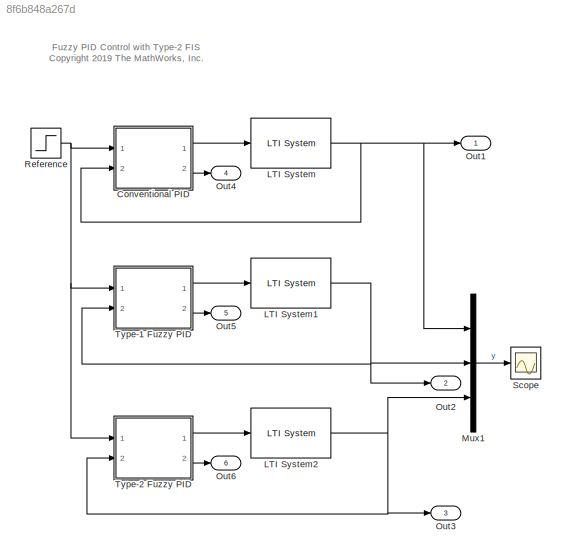
MODEL slx_8f6b848a267d
KIND model
CONFIG AbsTol = auto
CONFIG EnableMultiTasking = off
CONFIG FixedStep = 0.01
CONFIG MaxStep = auto
CONFIG MinStep = auto
CONFIG RelTol = 1e-3
CONFIG SampleTimeConstraint = Unconstrained
CONFIG Solver = FixedStepAuto
CONFIG SolverName = FixedStepAuto
CONFIG StartTime = 0.0
CONFIG StopTime = 30
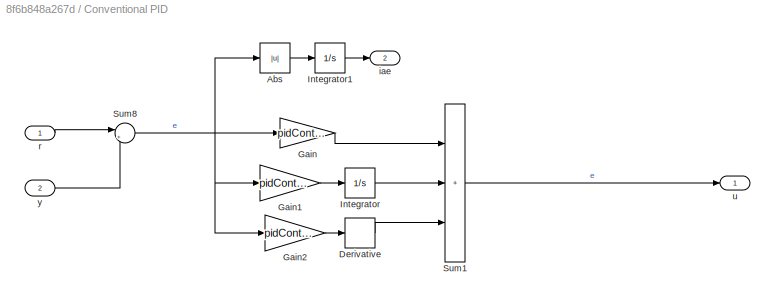
BLOCK [SubSystem] Conventional PID
  Ports = [2, 2]
  RequestExecContextInheritance = off
BLOCK [Abs] Conventional PID/Abs
  SaturateOnIntegerOverflow = off
BLOCK [Derivative] Conventional PID/Derivative
  CoefficientInTFapproximation = pidController.Tf
BLOCK [Gain] Conventional PID/Gain
  Gain = pidController.Kp
BLOCK [Gain] Conventional PID/Gain1
  Gain = pidController.Ki
BLOCK [Gain] Conventional PID/Gain2
  Gain = pidController.Kd
BLOCK [Integrator] Conventional PID/Integrator
  Ports = [1, 1]
BLOCK [Integrator] Conventional PID/Integrator1
  Ports = [1, 1]
BLOCK [Sum] Conventional PID/Sum1
  IconShape = rectangular
  Inputs = +++
  Ports = [3, 1]
BLOCK [Sum] Conventional PID/Sum8
  Inputs = |+-
  Ports = [2, 1]
BLOCK [Outport] Conventional PID/iae
  Port = 2
  VectorParamsAs1DForOutWhenUnconnected = off
BLOCK [Inport] Conventional PID/r
BLOCK [Outport] Conventional PID/u
  VectorParamsAs1DForOutWhenUnconnected = off
BLOCK [Inport] Conventional PID/y
  Port = 2
BLOCK [Reference] LTI System  REF=cstblocks/LTI System
  Ports = [1, 1]
  SourceBlock = cstblocks/LTI System
  SourceProductBaseCode = CT
  SourceType = LTI Block
BLOCK [Reference] LTI System1  REF=cstblocks/LTI System
  Ports = [1, 1]
  SourceBlock = cstblocks/LTI System
  SourceProductBaseCode = CT
  SourceType = LTI Block
BLOCK [Reference] LTI System2  REF=cstblocks/LTI System
  Ports = [1, 1]
  SourceBlock = cstblocks/LTI System
  SourceProductBaseCode = CT
  SourceType = LTI Block
BLOCK [Mux] Mux1
  DisplayOption = bar
  Inputs = 3
  Ports = [3, 1]
BLOCK [Outport] Out1
  VectorParamsAs1DForOutWhenUnconnected = off
BLOCK [Outport] Out2
  Port = 2
  VectorParamsAs1DForOutWhenUnconnected = off
BLOCK [Outport] Out3
  Port = 3
  VectorParamsAs1DForOutWhenUnconnected = off
BLOCK [Outport] Out4
  Port = 4
  VectorParamsAs1DForOutWhenUnconnected = off
BLOCK [Outport] Out5
  Port = 5
  VectorParamsAs1DForOutWhenUnconnected = off
BLOCK [Outport] Out6
  Port = 6
  VectorParamsAs1DForOutWhenUnconnected = off
BLOCK [Step] Reference
  SampleTime = 0
BLOCK [Scope] Scope
  Floating = off
  NumInputPorts = 1
  Ports = [1]
  ScopeSpecificationString = Simulink.scopes.TimeScopeBlockCfg('CurrentConfiguration', extmgr.ConfigurationSet(extmgr.Configuration('Core','General UI',true),extmgr.Configuration('Core','Source UI',true),extmgr.Configuration('Sources','WiredSimulink',true,'DataLoggingSaveFormat','StructureWithTime','DataLoggingLimitDataPoints',true,'DataLoggingDecimation','1','DataLoggingDecimateData',true),extmgr.Configuration('Visuals','Tim...<+1723ch>
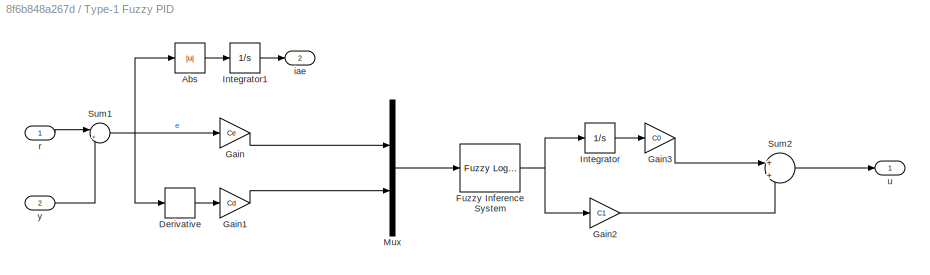
BLOCK [SubSystem] Type-1 Fuzzy PID
  Ports = [2, 2]
  RequestExecContextInheritance = off
BLOCK [Abs] Type-1 Fuzzy PID/Abs
  SaturateOnIntegerOverflow = off
BLOCK [Derivative] Type-1 Fuzzy PID/Derivative
  CoefficientInTFapproximation = 1
BLOCK [Reference] Type-1 Fuzzy PID/Fuzzy Inference System  REF=fuzblock/Fuzzy Logic   (lib defined in mdl_858b3b3e7478)
Controller
  Ports = [1, 1]
  SourceBlock = fuzblock/Fuzzy Logic \nController
  SourceProductBaseCode = FL
  SourceType = Fuzzy Inference System
BLOCK [Gain] Type-1 Fuzzy PID/Gain
  Gain = Ce
BLOCK [Gain] Type-1 Fuzzy PID/Gain1
  Gain = Cd
BLOCK [Gain] Type-1 Fuzzy PID/Gain2
  Gain = C1
BLOCK [Gain] Type-1 Fuzzy PID/Gain3
  Gain = C0
BLOCK [Integrator] Type-1 Fuzzy PID/Integrator
  Ports = [1, 1]
BLOCK [Integrator] Type-1 Fuzzy PID/Integrator1
  Ports = [1, 1]
BLOCK [Mux] Type-1 Fuzzy PID/Mux
  DisplayOption = bar
  Inputs = 2
  Ports = [2, 1]
BLOCK [Sum] Type-1 Fuzzy PID/Sum1
  Inputs = |+-
  Ports = [2, 1]
BLOCK [Sum] Type-1 Fuzzy PID/Sum2
  Inputs = +|+
  Ports = [2, 1]
BLOCK [Outport] Type-1 Fuzzy PID/iae
  Port = 2
  VectorParamsAs1DForOutWhenUnconnected = off
BLOCK [Inport] Type-1 Fuzzy PID/r
BLOCK [Outport] Type-1 Fuzzy PID/u
  VectorParamsAs1DForOutWhenUnconnected = off
BLOCK [Inport] Type-1 Fuzzy PID/y
  Port = 2
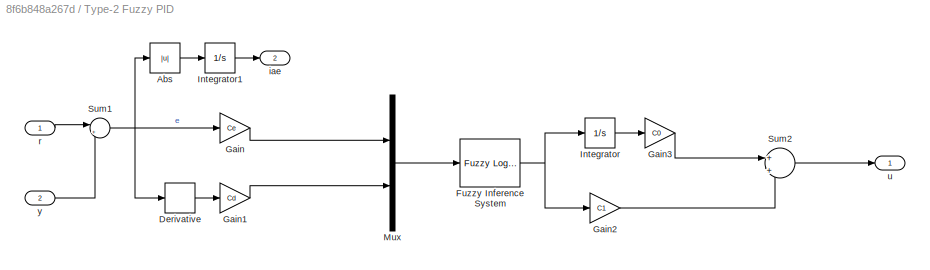
BLOCK [SubSystem] Type-2 Fuzzy PID
  Ports = [2, 2]
  RequestExecContextInheritance = off
BLOCK [Abs] Type-2 Fuzzy PID/Abs
  SaturateOnIntegerOverflow = off
BLOCK [Derivative] Type-2 Fuzzy PID/Derivative
  CoefficientInTFapproximation = 1
BLOCK [Reference] Type-2 Fuzzy PID/Fuzzy Inference System  REF=fuzblock/Fuzzy Logic   (lib defined in mdl_858b3b3e7478)
Controller
  Ports = [1, 1]
  SourceBlock = fuzblock/Fuzzy Logic \nController
  SourceProductBaseCode = FL
  SourceType = Fuzzy Inference System
BLOCK [Gain] Type-2 Fuzzy PID/Gain
  Gain = Ce
BLOCK [Gain] Type-2 Fuzzy PID/Gain1
  Gain = Cd
BLOCK [Gain] Type-2 Fuzzy PID/Gain2
  Gain = C1
BLOCK [Gain] Type-2 Fuzzy PID/Gain3
  Gain = C0
BLOCK [Integrator] Type-2 Fuzzy PID/Integrator
  Ports = [1, 1]
BLOCK [Integrator] Type-2 Fuzzy PID/Integrator1
  Ports = [1, 1]
BLOCK [Mux] Type-2 Fuzzy PID/Mux
  DisplayOption = bar
  Inputs = 2
  Ports = [2, 1]
BLOCK [Sum] Type-2 Fuzzy PID/Sum1
  Inputs = |+-
  Ports = [2, 1]
BLOCK [Sum] Type-2 Fuzzy PID/Sum2
  Inputs = +|+
  Ports = [2, 1]
BLOCK [Outport] Type-2 Fuzzy PID/iae
  Port = 2
  VectorParamsAs1DForOutWhenUnconnected = off
BLOCK [Inport] Type-2 Fuzzy PID/r
BLOCK [Outport] Type-2 Fuzzy PID/u
  VectorParamsAs1DForOutWhenUnconnected = off
BLOCK [Inport] Type-2 Fuzzy PID/y
  Port = 2
ANNOTATION (root): Fuzzy PID Control with Type-2 FIS <copyright redacted>
LINE Conventional PID/Abs:1 -> Conventional PID/Integrator1:1
LINE Conventional PID/Derivative:1 -> Conventional PID/Sum1:3
LINE Conventional PID/Gain1:1 -> Conventional PID/Integrator:1
LINE Conventional PID/Gain2:1 -> Conventional PID/Derivative:1
LINE Conventional PID/Gain:1 -> Conventional PID/Sum1:1
LINE Conventional PID/Integrator1:1 -> Conventional PID/iae:1
LINE Conventional PID/Integrator:1 -> Conventional PID/Sum1:2
LINE Conventional PID/Sum1:1 -> Conventional PID/u:1
NET Conventional PID/Sum8:1 -> Conventional PID/Abs:1, Conventional PID/Gain1:1, Conventional PID/Gain2:1, Conventional PID/Gain:1
LINE Conventional PID/r:1 -> Conventional PID/Sum8:1
LINE Conventional PID/y:1 -> Conventional PID/Sum8:2
LINE Conventional PID:1 -> LTI System:1
LINE Conventional PID:2 -> Out4:1
NET LTI System1:1 -> Mux1:2, Out2:1, Type-1 Fuzzy PID:2
NET LTI System2:1 -> Mux1:3, Out3:1, Type-2 Fuzzy PID:2
NET LTI System:1 -> Conventional PID:2, Mux1:1, Out1:1
LINE Mux1:1 -> Scope:1
NET Reference:1 -> Conventional PID:1, Type-1 Fuzzy PID:1, Type-2 Fuzzy PID:1
LINE Type-1 Fuzzy PID/Abs:1 -> Type-1 Fuzzy PID/Integrator1:1
LINE Type-1 Fuzzy PID/Derivative:1 -> Type-1 Fuzzy PID/Gain1:1
NET Type-1 Fuzzy PID/Fuzzy Inference System:1 -> Type-1 Fuzzy PID/Gain2:1, Type-1 Fuzzy PID/Integrator:1
LINE Type-1 Fuzzy PID/Gain1:1 -> Type-1 Fuzzy PID/Mux:2
LINE Type-1 Fuzzy PID/Gain2:1 -> Type-1 Fuzzy PID/Sum2:2
LINE Type-1 Fuzzy PID/Gain3:1 -> Type-1 Fuzzy PID/Sum2:1
LINE Type-1 Fuzzy PID/Gain:1 -> Type-1 Fuzzy PID/Mux:1
LINE Type-1 Fuzzy PID/Integrator1:1 -> Type-1 Fuzzy PID/iae:1
LINE Type-1 Fuzzy PID/Integrator:1 -> Type-1 Fuzzy PID/Gain3:1
LINE Type-1 Fuzzy PID/Mux:1 -> Type-1 Fuzzy PID/Fuzzy Inference System:1
NET Type-1 Fuzzy PID/Sum1:1 -> Type-1 Fuzzy PID/Abs:1, Type-1 Fuzzy PID/Derivative:1, Type-1 Fuzzy PID/Gain:1
LINE Type-1 Fuzzy PID/Sum2:1 -> Type-1 Fuzzy PID/u:1
LINE Type-1 Fuzzy PID/r:1 -> Type-1 Fuzzy PID/Sum1:1
LINE Type-1 Fuzzy PID/y:1 -> Type-1 Fuzzy PID/Sum1:2
LINE Type-1 Fuzzy PID:1 -> LTI System1:1
LINE Type-1 Fuzzy PID:2 -> Out5:1
LINE Type-2 Fuzzy PID/Abs:1 -> Type-2 Fuzzy PID/Integrator1:1
LINE Type-2 Fuzzy PID/Derivative:1 -> Type-2 Fuzzy PID/Gain1:1
NET Type-2 Fuzzy PID/Fuzzy Inference System:1 -> Type-2 Fuzzy PID/Gain2:1, Type-2 Fuzzy PID/Integrator:1
LINE Type-2 Fuzzy PID/Gain1:1 -> Type-2 Fuzzy PID/Mux:2
LINE Type-2 Fuzzy PID/Gain2:1 -> Type-2 Fuzzy PID/Sum2:2
LINE Type-2 Fuzzy PID/Gain3:1 -> Type-2 Fuzzy PID/Sum2:1
LINE Type-2 Fuzzy PID/Gain:1 -> Type-2 Fuzzy PID/Mux:1
LINE Type-2 Fuzzy PID/Integrator1:1 -> Type-2 Fuzzy PID/iae:1
LINE Type-2 Fuzzy PID/Integrator:1 -> Type-2 Fuzzy PID/Gain3:1
LINE Type-2 Fuzzy PID/Mux:1 -> Type-2 Fuzzy PID/Fuzzy Inference System:1
NET Type-2 Fuzzy PID/Sum1:1 -> Type-2 Fuzzy PID/Abs:1, Type-2 Fuzzy PID/Derivative:1, Type-2 Fuzzy PID/Gain:1
LINE Type-2 Fuzzy PID/Sum2:1 -> Type-2 Fuzzy PID/u:1
LINE Type-2 Fuzzy PID/r:1 -> Type-2 Fuzzy PID/Sum1:1
LINE Type-2 Fuzzy PID/y:1 -> Type-2 Fuzzy PID/Sum1:2
LINE Type-2 Fuzzy PID:1 -> LTI System2:1
LINE Type-2 Fuzzy PID:2 -> Out6:1
note: NET lines group one-source signal fan-out (src -> all destinations, sorted); 1:1 wires keep LINE
